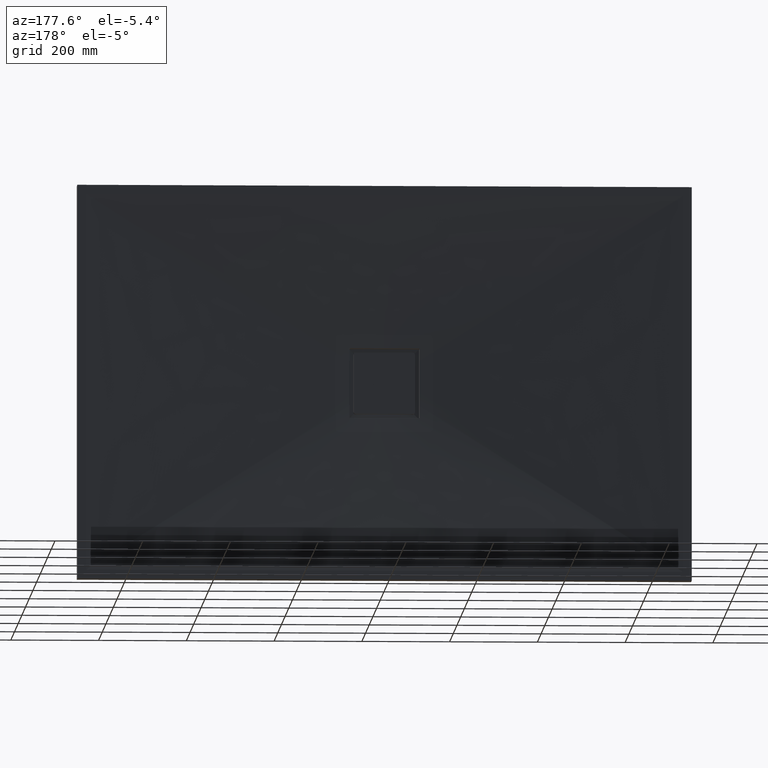
[diagram: clean part render]
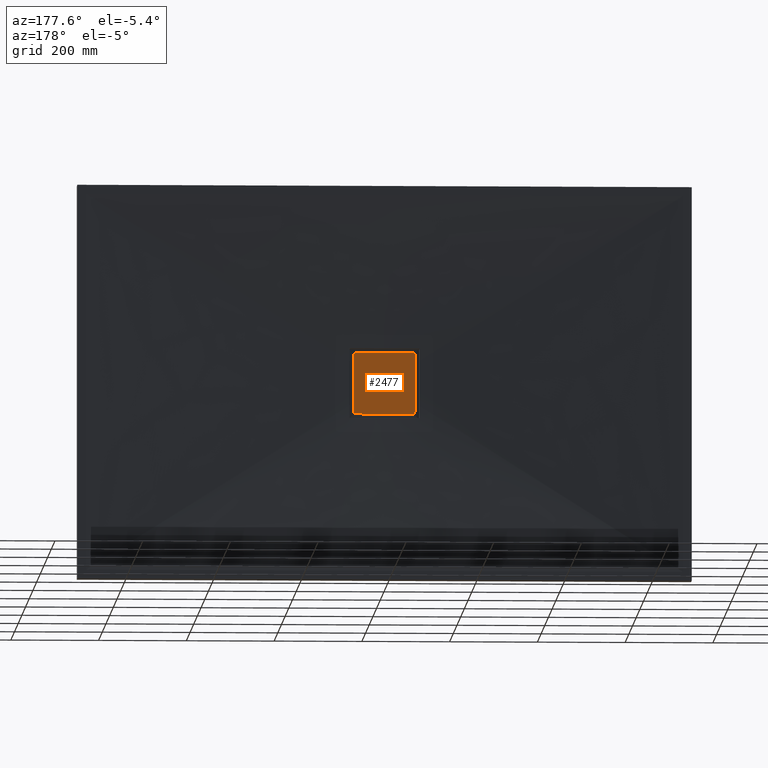
[diagram: same view with one face highlighted and labeled with its STEP entity id]
A machine part, auxiliary view. The second image highlights one B-rep face of the part: STEP entity #2477.
In plain terms, the highlighted planar face has unit normal (0, -1, 0).
Its self-contained STEP definition (entity closure, byte-faithful):
#37 = DIRECTION ( 'NONE',  ( 0.0000000000000000000, 0.0000000000000000000, -1.000000000000000000 ) ) ;
#69 = AXIS2_PLACEMENT_3D ( 'NONE', #2047, #2341, #1860 ) ;
#119 = CARTESIAN_POINT ( 'NONE',  ( -69.99999999999940300, 20.00000000000001800, 65.00000000000017100 ) ) ;
#225 = VERTEX_POINT ( 'NONE', #402 ) ;
#243 = CARTESIAN_POINT ( 'NONE',  ( 70.00000000000028400, 20.00000000000001800, 65.00000000000005700 ) ) ;
#257 = AXIS2_PLACEMENT_3D ( 'NONE', #1723, #1716, #1713 ) ;
#282 = VECTOR ( 'NONE', #2764, 1000.000000000000000 ) ;
#295 = LINE ( 'NONE', #2074, #282 ) ;
#298 = LINE ( 'NONE', #2775, #320 ) ;
#320 = VECTOR ( 'NONE', #2559, 1000.000000000000000 ) ;
#328 = EDGE_CURVE ( 'NONE', #1476, #1293, #1406, .T. ) ;
#350 = FACE_OUTER_BOUND ( 'NONE', #3146, .T. ) ;
#378 = DIRECTION ( 'NONE',  ( 0.0000000000000000000, 1.000000000000000000, -0.0000000000000000000 ) ) ;
#402 = CARTESIAN_POINT ( 'NONE',  ( 64.99999999999950300, 20.00000000000001800, -69.99999999999995700 ) ) ;
#430 = DIRECTION ( 'NONE',  ( 0.0000000000000000000, 0.0000000000000000000, -1.000000000000000000 ) ) ;
#448 = CARTESIAN_POINT ( 'NONE',  ( -64.99999999999950300, 20.00000000000001800, -64.99999999999994300 ) ) ;
#869 = EDGE_CURVE ( 'NONE', #2003, #1606, #2996, .T. ) ;
#1108 = DIRECTION ( 'NONE',  ( 0.0000000000000000000, 1.000000000000000000, 0.0000000000000000000 ) ) ;
#1180 = DIRECTION ( 'NONE',  ( 0.0000000000000000000, 0.0000000000000000000, 1.000000000000000000 ) ) ;
#1293 = VERTEX_POINT ( 'NONE', #2567 ) ;
#1294 = CIRCLE ( 'NONE', #2641, 5.000000000000004400 ) ;
#1320 = LINE ( 'NONE', #2257, #1354 ) ;
#1354 = VECTOR ( 'NONE', #2243, 1000.000000000000000 ) ;
#1397 = CARTESIAN_POINT ( 'NONE',  ( 64.99999999999950300, 20.00000000000001800, 65.00000000000005700 ) ) ;
#1406 = CIRCLE ( 'NONE', #2466, 5.000000000000004400 ) ;
#1476 = VERTEX_POINT ( 'NONE', #2745 ) ;
#1511 = CARTESIAN_POINT ( 'NONE',  ( 70.00000000000028400, 20.00000000000001800, 65.00000000000005700 ) ) ;
#1532 = VERTEX_POINT ( 'NONE', #2577 ) ;
#1601 = ORIENTED_EDGE ( 'NONE', *, *, #1996, .T. ) ;
#1606 = VERTEX_POINT ( 'NONE', #1667 ) ;
#1667 = CARTESIAN_POINT ( 'NONE',  ( 70.00000000000028400, 20.00000000000001800, -64.99999999999994300 ) ) ;
#1713 = DIRECTION ( 'NONE',  ( 0.0000000000000000000, 0.0000000000000000000, -1.000000000000000000 ) ) ;
#1716 = DIRECTION ( 'NONE',  ( 0.0000000000000000000, 1.000000000000000000, -0.0000000000000000000 ) ) ;
#1723 = CARTESIAN_POINT ( 'NONE',  ( -64.99999999999950300, 20.00000000000001800, 65.00000000000017100 ) ) ;
#1743 = AXIS2_PLACEMENT_3D ( 'NONE', #1397, #1108, #1180 ) ;
#1860 = DIRECTION ( 'NONE',  ( 0.0000000000000000000, -0.0000000000000000000, -1.000000000000000000 ) ) ;
#1977 = PLANE ( 'NONE',  #69 ) ;
#1996 = EDGE_CURVE ( 'NONE', #1293, #3153, #1320, .T. ) ;
#2003 = VERTEX_POINT ( 'NONE', #243 ) ;
#2043 = EDGE_CURVE ( 'NONE', #1606, #225, #1294, .T. ) ;
#2047 = CARTESIAN_POINT ( 'NONE',  ( -64.99999999999950300, 20.00000000000001800, 65.00000000000017100 ) ) ;
#2074 = CARTESIAN_POINT ( 'NONE',  ( -64.99999999999950300, 20.00000000000001800, 70.00000000000005700 ) ) ;
#2137 = CIRCLE ( 'NONE', #1743, 5.000000000000004400 ) ;
#2227 = ORIENTED_EDGE ( 'NONE', *, *, #328, .T. ) ;
#2235 = ORIENTED_EDGE ( 'NONE', *, *, #2451, .T. ) ;
#2243 = DIRECTION ( 'NONE',  ( -0.0000000000000000000, -0.0000000000000000000, 1.000000000000000000 ) ) ;
#2257 = CARTESIAN_POINT ( 'NONE',  ( -69.99999999999940300, 20.00000000000001800, 65.00000000000017100 ) ) ;
#2320 = ORIENTED_EDGE ( 'NONE', *, *, #2043, .T. ) ;
#2341 = DIRECTION ( 'NONE',  ( 0.0000000000000000000, -1.000000000000000000, 0.0000000000000000000 ) ) ;
#2443 = EDGE_CURVE ( 'NONE', #1532, #2819, #295, .T. ) ;
#2451 = EDGE_CURVE ( 'NONE', #225, #1476, #298, .T. ) ;
#2452 = ORIENTED_EDGE ( 'NONE', *, *, #869, .T. ) ;
#2466 = AXIS2_PLACEMENT_3D ( 'NONE', #448, #378, #430 ) ;
#2472 = ORIENTED_EDGE ( 'NONE', *, *, #3220, .T. ) ;
#2477 = ADVANCED_FACE ( 'NONE', ( #350 ), #1977, .F. ) ;
#2502 = ORIENTED_EDGE ( 'NONE', *, *, #2443, .T. ) ;
#2559 = DIRECTION ( 'NONE',  ( -1.000000000000000000, -0.0000000000000000000, 1.067522139062650400E-016 ) ) ;
#2567 = CARTESIAN_POINT ( 'NONE',  ( -69.99999999999940300, 20.00000000000001800, -64.99999999999994300 ) ) ;
#2577 = CARTESIAN_POINT ( 'NONE',  ( -64.99999999999950300, 20.00000000000001800, 70.00000000000005700 ) ) ;
#2641 = AXIS2_PLACEMENT_3D ( 'NONE', #2988, #2892, #3031 ) ;
#2712 = ORIENTED_EDGE ( 'NONE', *, *, #3050, .T. ) ;
#2745 = CARTESIAN_POINT ( 'NONE',  ( -64.99999999999950300, 20.00000000000001800, -69.99999999999984400 ) ) ;
#2754 = CARTESIAN_POINT ( 'NONE',  ( 64.99999999999950300, 20.00000000000001800, 70.00000000000005700 ) ) ;
#2764 = DIRECTION ( 'NONE',  ( 1.000000000000000000, 0.0000000000000000000, -1.067522139062650400E-016 ) ) ;
#2775 = CARTESIAN_POINT ( 'NONE',  ( -64.99999999999950300, 20.00000000000001800, -69.99999999999984400 ) ) ;
#2784 = CIRCLE ( 'NONE', #257, 5.000000000000004400 ) ;
#2819 = VERTEX_POINT ( 'NONE', #2754 ) ;
#2892 = DIRECTION ( 'NONE',  ( 0.0000000000000000000, 1.000000000000000000, -0.0000000000000000000 ) ) ;
#2977 = VECTOR ( 'NONE', #37, 1000.000000000000000 ) ;
#2988 = CARTESIAN_POINT ( 'NONE',  ( 64.99999999999950300, 20.00000000000001800, -64.99999999999994300 ) ) ;
#2996 = LINE ( 'NONE', #1511, #2977 ) ;
#3031 = DIRECTION ( 'NONE',  ( 0.0000000000000000000, 0.0000000000000000000, -1.000000000000000000 ) ) ;
#3050 = EDGE_CURVE ( 'NONE', #3153, #1532, #2784, .T. ) ;
#3146 = EDGE_LOOP ( 'NONE', ( #2712, #2502, #2472, #2452, #2320, #2235, #2227, #1601 ) ) ;
#3153 = VERTEX_POINT ( 'NONE', #119 ) ;
#3220 = EDGE_CURVE ( 'NONE', #2819, #2003, #2137, .T. ) ;